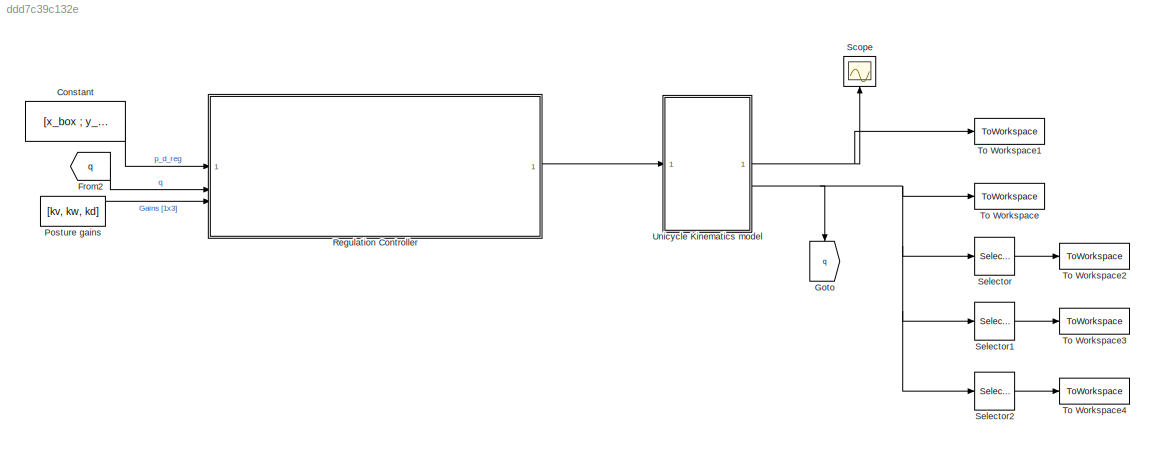
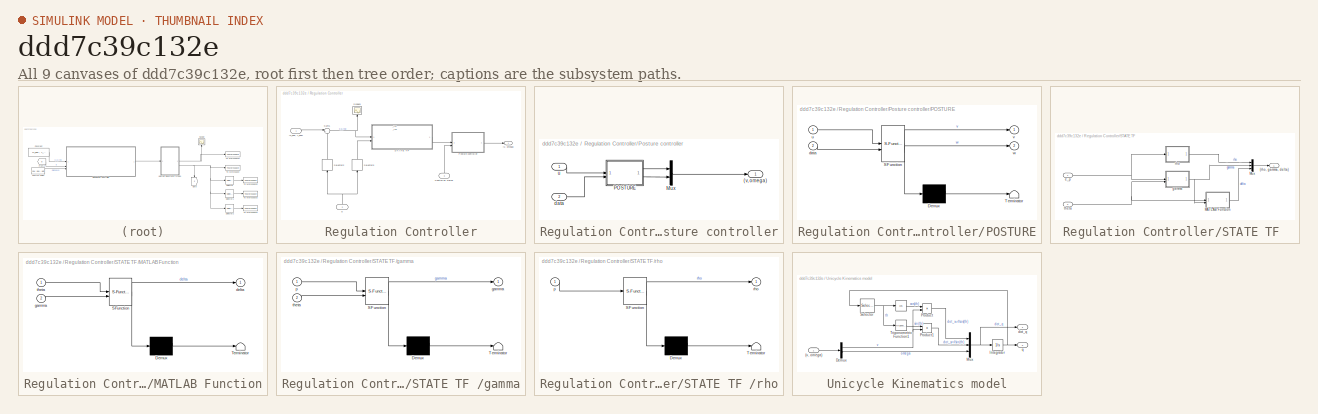
[diagram: thumbnail index - all 9 canvases of the model, root first then tree order]
MODEL slx_ddd7c39c132e
KIND model
CONFIG AbsTol = auto
CONFIG EnableMultiTasking = off
CONFIG FixedStep = Ts
CONFIG MaxStep = auto
CONFIG MinStep = auto
CONFIG RelTol = 1e-3
CONFIG SampleTimeConstraint = Unconstrained
CONFIG SolverName = FixedStepAuto
CONFIG StartTime = 0.0
CONFIG StopTime = 10.0
BLOCK [Constant] Constant
  Value = [x_box ; y_box]
BLOCK [From] From2
  GotoTag = q
BLOCK [Goto] Goto
  GotoTag = q
  NameLocation = left
BLOCK [Constant] Posture gains
  Value = [kv, kw, kd]
BLOCK [SubSystem] Regulation Controller
BLOCK [Outport] Regulation Controller/(v, omega)
BLOCK [Inport] Regulation Controller/(x_box, y_box)
  NameLocation = top
BLOCK [Inport] Regulation Controller/Controller Gains
  Port = 3
BLOCK [SubSystem] Regulation Controller/Posture controller
BLOCK [Outport] Regulation Controller/Posture controller/(v, omega)
BLOCK [Mux] Regulation Controller/Posture controller/Mux
  DisplayOption = bar
  Inputs = 2
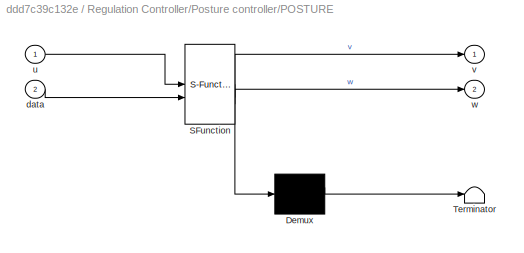
BLOCK [SubSystem] Regulation Controller/Posture controller/POSTURE
  ErrorFcn = Stateflow.Translate.translate
  PermitHierarchicalResolution = ExplicitOnly
  SFBlockType = MATLAB Function
  TreatAsAtomicUnit = on
BLOCK [Demux] Regulation Controller/Posture controller/POSTURE/ Demux 
  Outputs = 1
BLOCK [S-Function] Regulation Controller/Posture controller/POSTURE/ SFunction 
  EnableBusSupport = off
  FunctionName = sf_sfun
  PortCounts = [2 3]
  SFcnIsStateOwnerBlock = off
  SFunctionDeploymentMode = off
  Tag = Stateflow S-Function 8
BLOCK [Terminator] Regulation Controller/Posture controller/POSTURE/ Terminator 
BLOCK [Inport] Regulation Controller/Posture controller/POSTURE/data
  Port = 2
BLOCK [Inport] Regulation Controller/Posture controller/POSTURE/u
BLOCK [Outport] Regulation Controller/Posture controller/POSTURE/v
BLOCK [Outport] Regulation Controller/Posture controller/POSTURE/w
  Port = 2
BLOCK [Inport] Regulation Controller/Posture controller/data
  Port = 2
BLOCK [Inport] Regulation Controller/Posture controller/u
BLOCK [SubSystem] Regulation Controller/STATE TF 
BLOCK [Outport] Regulation Controller/STATE TF /(rho, gamma, delta)
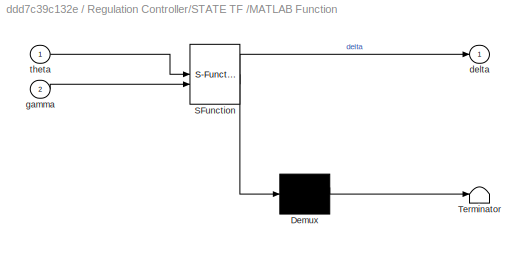
BLOCK [SubSystem] Regulation Controller/STATE TF /MATLAB Function
  ErrorFcn = Stateflow.Translate.translate
  PermitHierarchicalResolution = ExplicitOnly
  SFBlockType = MATLAB Function
  TreatAsAtomicUnit = on
BLOCK [Demux] Regulation Controller/STATE TF /MATLAB Function/ Demux 
  Outputs = 1
BLOCK [S-Function] Regulation Controller/STATE TF /MATLAB Function/ SFunction 
  EnableBusSupport = off
  FunctionName = sf_sfun
  PortCounts = [2 2]
  SFcnIsStateOwnerBlock = off
  SFunctionDeploymentMode = off
  Tag = Stateflow S-Function 4
BLOCK [Terminator] Regulation Controller/STATE TF /MATLAB Function/ Terminator 
BLOCK [Outport] Regulation Controller/STATE TF /MATLAB Function/delta
BLOCK [Inport] Regulation Controller/STATE TF /MATLAB Function/gamma
  Port = 2
BLOCK [Inport] Regulation Controller/STATE TF /MATLAB Function/theta
BLOCK [Mux] Regulation Controller/STATE TF /Mux
  DisplayOption = bar
  Inputs = 3
BLOCK [Inport] Regulation Controller/STATE TF /e_p
BLOCK [SubSystem] Regulation Controller/STATE TF /gamma
  ErrorFcn = Stateflow.Translate.translate
  PermitHierarchicalResolution = ExplicitOnly
  SFBlockType = MATLAB Function
  TreatAsAtomicUnit = on
BLOCK [Demux] Regulation Controller/STATE TF /gamma/ Demux 
  Outputs = 1
BLOCK [S-Function] Regulation Controller/STATE TF /gamma/ SFunction 
  EnableBusSupport = off
  FunctionName = sf_sfun
  PortCounts = [2 2]
  SFcnIsStateOwnerBlock = off
  SFunctionDeploymentMode = off
  Tag = Stateflow S-Function 9
BLOCK [Terminator] Regulation Controller/STATE TF /gamma/ Terminator 
BLOCK [Outport] Regulation Controller/STATE TF /gamma/gamma
BLOCK [Inport] Regulation Controller/STATE TF /gamma/p
BLOCK [Inport] Regulation Controller/STATE TF /gamma/theta
  Port = 2
BLOCK [SubSystem] Regulation Controller/STATE TF /rho
  ErrorFcn = Stateflow.Translate.translate
  PermitHierarchicalResolution = ExplicitOnly
  SFBlockType = MATLAB Function
  TreatAsAtomicUnit = on
BLOCK [Demux] Regulation Controller/STATE TF /rho/ Demux 
  Outputs = 1
BLOCK [S-Function] Regulation Controller/STATE TF /rho/ SFunction 
  EnableBusSupport = off
  FunctionName = sf_sfun
  PortCounts = [1 2]
  SFcnIsStateOwnerBlock = off
  SFunctionDeploymentMode = off
  Tag = Stateflow S-Function 10
BLOCK [Terminator] Regulation Controller/STATE TF /rho/ Terminator 
BLOCK [Inport] Regulation Controller/STATE TF /rho/p
BLOCK [Outport] Regulation Controller/STATE TF /rho/rho
BLOCK [Inport] Regulation Controller/STATE TF /theta
  Port = 2
BLOCK [Scope] Regulation Controller/Scope3
  ActiveDisplayYMaximum = 1.6973761395E+6
  ActiveDisplayYMinimum = -1.51842483246E+7
  DataLoggingVariableName = ScopeData3
  Floating = off
  GraphicalSettings = {"GraphicalSettings":{"LegacySettings":true,"Style":{"AxesScalingProperties":{"AlignXAxis":"Center","AlignYAxis":"Center","AutoScaleXAxisLimits":true,"AxesScaling":"Manual","AxesScalingNumUpdates":10,"ScaleAxesLimitsAtStop":false,"XAxisDataRange":100,"YAxisDataRange":80},"Style":{"AxesColor":"[0.0705882352941176 0.0705882352941176 0.0705882352941176]","BackgroundColor":"[0.129411764705882 0.129411...<+803ch>
  LayoutDimensionsString = [1 1]
  MultipleDisplayCache = [{"MaxYLimMag":1.51842483246E+7,"MaxYLimReal":1.6973761395E+6,"MinYLimMag":0,"MinYLimReal":-1.51842483246E+7,"PlotAsMagnitudePhase":false,"ShowGrid":true,"ShowLegend":false,"Title":"%<SignalLabel>","YLabel":""}]
  NameLocation = right
  NumInputPorts = 1
  WasSavedAsWebScope = on
  WindowPosition = [47 38 1874 1011]
BLOCK [Selector] Regulation Controller/Selector2
  IndexOptions = Index vector (dialog)
  Indices = [1 2]
  InputPortWidth = 3
  NameLocation = left
  OutputSizes = 1
BLOCK [Selector] Regulation Controller/Selector3
  IndexOptions = Index vector (dialog)
  Indices = [3]
  InputPortWidth = 3
  NameLocation = left
  OutputSizes = 1
BLOCK [Sum] Regulation Controller/Sum1
  Inputs = |+-
BLOCK [Inport] Regulation Controller/q
  Port = 2
BLOCK [Scope] Scope
  ActiveDisplayYMaximum = 630.9359
  ActiveDisplayYMinimum = -1203.295
  DataLoggingVariableName = ScopeData1
  Floating = off
  GraphicalSettings = {"GraphicalSettings":{"LegacySettings":true,"Style":{"AxesScalingProperties":{"AlignXAxis":"Center","AlignYAxis":"Center","AutoScaleXAxisLimits":true,"AxesScaling":"Manual","AxesScalingNumUpdates":10,"ScaleAxesLimitsAtStop":false,"XAxisDataRange":100,"YAxisDataRange":80},"Style":{"AxesColor":"[0.0705882352941176 0.0705882352941176 0.0705882352941176]","BackgroundColor":"[0.129411764705882 0.129411...<+803ch>
  LayoutDimensionsString = [1 1]
  MultipleDisplayCache = [{"MaxYLimMag":10,"MaxYLimReal":630.9359,"MinYLimMag":0,"MinYLimReal":-1203.295,"PlotAsMagnitudePhase":false,"ShowGrid":true,"ShowLegend":false,"Title":"%<SignalLabel>","YLabel":""}]
  NameLocation = right
  NumInputPorts = 1
  WasSavedAsWebScope = on
  WindowPosition = [47 38 1874 1011]
BLOCK [Selector] Selector
  IndexOptions = Index vector (dialog)
  Indices = [1]
  InputPortWidth = 3
  OutputSizes = 1
BLOCK [Selector] Selector1
  IndexOptions = Index vector (dialog)
  Indices = [2]
  InputPortWidth = 3
  OutputSizes = 1
BLOCK [Selector] Selector2
  IndexOptions = Index vector (dialog)
  Indices = [3]
  InputPortWidth = 3
  OutputSizes = 1
BLOCK [ToWorkspace] To Workspace
  FixptAsFi = on
  MaxDataPoints = inf
  SampleTime = -1
  SaveFormat = Timeseries
  VariableName = q
BLOCK [ToWorkspace] To Workspace1
  FixptAsFi = on
  MaxDataPoints = inf
  SampleTime = -1
  SaveFormat = Timeseries
  VariableName = qdot
BLOCK [ToWorkspace] To Workspace2
  FixptAsFi = on
  MaxDataPoints = inf
  SampleTime = -1
  SaveFormat = Timeseries
  VariableName = x
BLOCK [ToWorkspace] To Workspace3
  FixptAsFi = on
  MaxDataPoints = inf
  SampleTime = -1
  SaveFormat = Timeseries
  VariableName = y
BLOCK [ToWorkspace] To Workspace4
  FixptAsFi = on
  MaxDataPoints = inf
  SampleTime = -1
  SaveFormat = Timeseries
  VariableName = theta
BLOCK [SubSystem] Unicycle Kinematics model
BLOCK [Trigonometry] Unicycle Kinematics model/ 
  Operator = cos
BLOCK [Inport] Unicycle Kinematics model/(v, omega)
BLOCK [Demux] Unicycle Kinematics model/Demux
  Outputs = 2
BLOCK [Integrator] Unicycle Kinematics model/Integrator
  InitialCondition = [x0; y0; theta0]
BLOCK [Mux] Unicycle Kinematics model/Mux
  DisplayOption = bar
  Inputs = 3
BLOCK [Product] Unicycle Kinematics model/Product
BLOCK [Product] Unicycle Kinematics model/Product1
BLOCK [Selector] Unicycle Kinematics model/Selector
  IndexOptions = Index vector (dialog)
  Indices = [3]
  InputPortWidth = 3
  OutputSizes = 1
BLOCK [Trigonometry] Unicycle Kinematics model/Trigonometric Function1
BLOCK [Outport] Unicycle Kinematics model/dot_q
BLOCK [Outport] Unicycle Kinematics model/q
  Port = 2
ANNOTATION Regulation Controller: _reg
LINE Constant:1 -> Regulation Controller:1
LINE From2:1 -> Regulation Controller:2
LINE Posture gains:1 -> Regulation Controller:3
LINE Regulation Controller/(x_box, y_box):1 -> Regulation Controller/Sum1:1
LINE Regulation Controller/Controller Gains:1 -> Regulation Controller/Posture controller:2
LINE Regulation Controller/Posture controller/Mux:1 -> Regulation Controller/Posture controller/(v, omega):1
LINE Regulation Controller/Posture controller/POSTURE:1 -> Regulation Controller/Posture controller/Mux:1
LINE Regulation Controller/Posture controller/POSTURE:2 -> Regulation Controller/Posture controller/Mux:2
LINE Regulation Controller/Posture controller/data:1 -> Regulation Controller/Posture controller/POSTURE:2
LINE Regulation Controller/Posture controller/u:1 -> Regulation Controller/Posture controller/POSTURE:1
LINE Regulation Controller/Posture controller:1 -> Regulation Controller/(v, omega):1
LINE Regulation Controller/STATE TF /MATLAB Function:1 -> Regulation Controller/STATE TF /Mux:3
LINE Regulation Controller/STATE TF /Mux:1 -> Regulation Controller/STATE TF /(rho, gamma, delta):1
NET Regulation Controller/STATE TF /e_p:1 -> Regulation Controller/STATE TF /gamma:1, Regulation Controller/STATE TF /rho:1
NET Regulation Controller/STATE TF /gamma:1 -> Regulation Controller/STATE TF /MATLAB Function:2, Regulation Controller/STATE TF /Mux:2
LINE Regulation Controller/STATE TF /rho:1 -> Regulation Controller/STATE TF /Mux:1
NET Regulation Controller/STATE TF /theta:1 -> Regulation Controller/STATE TF /MATLAB Function:1, Regulation Controller/STATE TF /gamma:2
LINE Regulation Controller/STATE TF :1 -> Regulation Controller/Posture controller:1
LINE Regulation Controller/Selector2:1 -> Regulation Controller/Sum1:2
LINE Regulation Controller/Selector3:1 -> Regulation Controller/STATE TF :2
NET Regulation Controller/Sum1:1 -> Regulation Controller/STATE TF :1, Regulation Controller/Scope3:1
NET Regulation Controller/q:1 -> Regulation Controller/Selector2:1, Regulation Controller/Selector3:1
LINE Regulation Controller:1 -> Unicycle Kinematics model:1
LINE Selector1:1 -> To Workspace3:1
LINE Selector2:1 -> To Workspace4:1
LINE Selector:1 -> To Workspace2:1
LINE Unicycle Kinematics model/ :1 -> Unicycle Kinematics model/Product:1
LINE Unicycle Kinematics model/(v, omega):1 -> Unicycle Kinematics model/Demux:1
NET Unicycle Kinematics model/Demux:1 -> Unicycle Kinematics model/Product1:2, Unicycle Kinematics model/Product:2
LINE Unicycle Kinematics model/Demux:2 -> Unicycle Kinematics model/Mux:3
NET Unicycle Kinematics model/Integrator:1 -> Unicycle Kinematics model/Selector:1, Unicycle Kinematics model/q:1
NET Unicycle Kinematics model/Mux:1 -> Unicycle Kinematics model/Integrator:1, Unicycle Kinematics model/dot_q:1
LINE Unicycle Kinematics model/Product1:1 -> Unicycle Kinematics model/Mux:2
LINE Unicycle Kinematics model/Product:1 -> Unicycle Kinematics model/Mux:1
NET Unicycle Kinematics model/Selector:1 -> Unicycle Kinematics model/ :1, Unicycle Kinematics model/Trigonometric Function1:1
LINE Unicycle Kinematics model/Trigonometric Function1:1 -> Unicycle Kinematics model/Product1:1
NET Unicycle Kinematics model:1 -> Scope:1, To Workspace1:1
NET Unicycle Kinematics model:2 -> Goto:1, Selector1:1, Selector2:1, Selector:1, To Workspace:1
note: NET lines group one-source signal fan-out (src -> all destinations, sorted); 1:1 wires keep LINE
CHART Regulation Controller/Posture controller/POSTURE states=1 transitions=1
  STATE_LABEL 'eML_blk_kernel()'
  STATE_LABEL 'SCRIPT:\nfunction [v,w]= fcn(u, data)\n\nK1 = data(1);\nK2 = data(2);\nK3 = data(3);\n\nrho = u(1);\ngamma = u(2);\ndelta = u(3);\n\n\nv = K1 * rho * cos(gamma);\n\nif abs(gamma) < 1e-6\n    s = 1;                 % sin(gamma)/gamma -> 1\nelse\n    s = sin(gamma)/gamma;\nend\nw = K2*gamma + K1*(s*cos(gamma))*(gamma + K3*delta);\n\n'
CHART Regulation Controller/STATE TF /gamma states=1 transitions=1
  STATE_LABEL 'eML_blk_kernel()'
  STATE_LABEL 'SCRIPT:\nfunction gamma = fcn(p, theta)\n\ne_x = -p(1);\ne_y = -p(2);\n\ngamma = atan2(e_y,e_x) + pi - theta;\n\nend'
CHART Regulation Controller/STATE TF /rho states=1 transitions=1
  STATE_LABEL 'eML_blk_kernel()'
  STATE_LABEL 'SCRIPT:\nfunction rho = fcn(p)\ne_x = -p(1);\ne_y = -p(2);\nrho = sqrt(e_x^2 + e_y^2);\nend\n'
CHART Regulation Controller/STATE TF /MATLAB Function states=1 transitions=1
  STATE_LABEL 'eML_blk_kernel()'
  STATE_LABEL 'SCRIPT:\nfunction delta = fcn(theta, gamma)\n\n\n\ndelta = theta + gamma;\nend\n'
CHART  states=0 transitions=0
CHART  states=0 transitions=0
CHART  states=0 transitions=0
CHART  states=0 transitions=0
